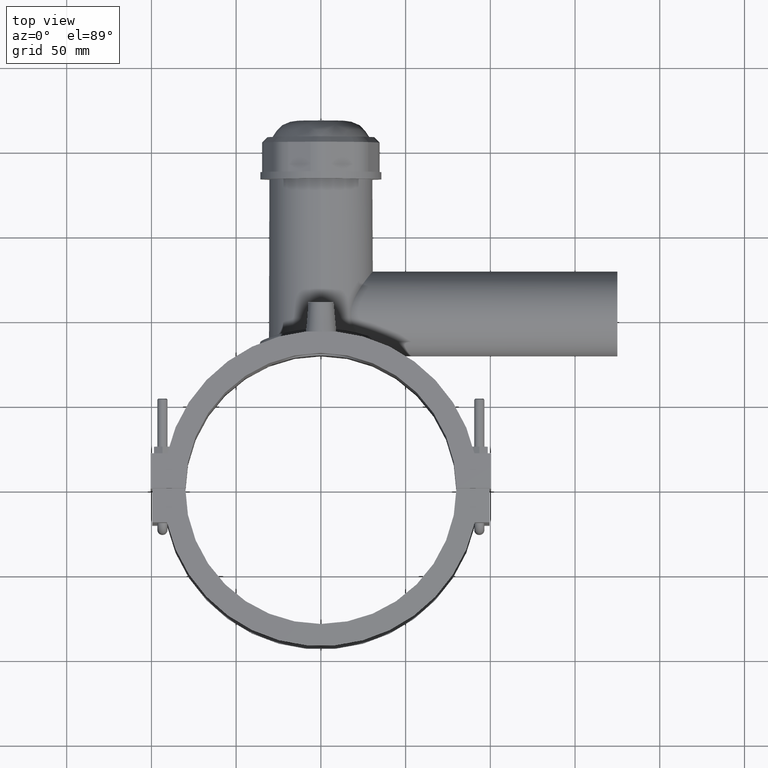
[diagram: clean part render]
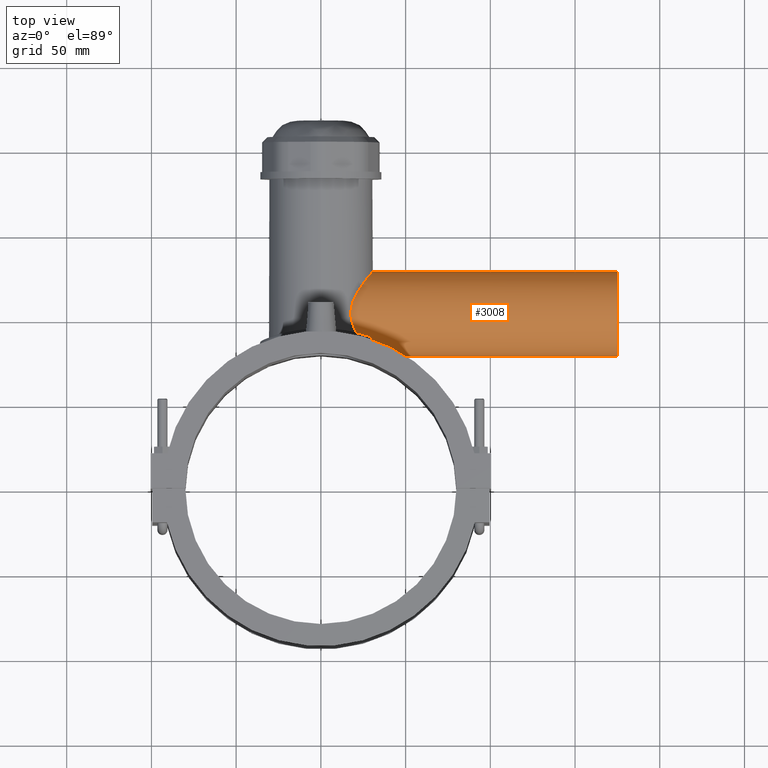
[diagram: same view with one face highlighted and labeled with its STEP entity id]
A machine part, top view. The second image highlights one B-rep face of the part: STEP entity #3008.
In plain terms, the highlighted cylindrical surface (bore or boss wall) has radius 25 mm, axis along (1, 0, 0).
Its self-contained STEP definition (entity closure, byte-faithful):
#710=CIRCLE('',#3194,25.0000000000001);
#815=FACE_BOUND('',#1051,.T.);
#866=FACE_OUTER_BOUND('',#1050,.T.);
#1050=EDGE_LOOP('',(#2068));
#1051=EDGE_LOOP('',(#2069,#2070,#2071,#2072,#2073,#2074,#2075,#2076));
#1278=B_SPLINE_CURVE_WITH_KNOTS('',3,(#4453,#4454,#4455,#4456),
 .UNSPECIFIED.,.F.,.F.,(4,4),(1.96961849916364,2.60579241524687),
 .UNSPECIFIED.);
#1279=B_SPLINE_CURVE_WITH_KNOTS('',3,(#4458,#4459,#4460,#4461,#4462,#4463,
#4464,#4465),.UNSPECIFIED.,.F.,.F.,(4,2,2,4),(-0.369474162838264,-0.220000092691223,
-0.0735199127834791,0.),.UNSPECIFIED.);
#1280=B_SPLINE_CURVE_WITH_KNOTS('',3,(#4467,#4468,#4469,#4470,#4471,#4472),
 .UNSPECIFIED.,.F.,.F.,(4,2,4),(13.650044194566,13.7841195731783,14.119760212921),
 .UNSPECIFIED.);
#1281=B_SPLINE_CURVE_WITH_KNOTS('',3,(#4474,#4475,#4476,#4477,#4478,#4479,
#4480,#4481,#4482,#4483,#4484,#4485,#4486,#4487,#4488,#4489,#4490,#4491,
#4492,#4493,#4494,#4495,#4496,#4497,#4498,#4499),.UNSPECIFIED.,.F.,.F.,
(4,2,2,2,2,2,2,2,2,2,2,2,4),(2.44276884685746,2.76300415168043,3.22350484362717,
3.68400553557391,4.2419359676397,4.5209011836726,4.79986639970549,5.07883161573839,
5.35779683177129,5.91572726383708,6.37622795578382,6.83672864773056,7.15696395255353),
 .UNSPECIFIED.);
#1282=B_SPLINE_CURVE_WITH_KNOTS('',3,(#4501,#4502,#4503,#4504,#4505,#4506),
 .UNSPECIFIED.,.F.,.F.,(4,2,4),(9.53341195761478,9.86905259781485,10.0031279764272),
 .UNSPECIFIED.);
#1283=B_SPLINE_CURVE_WITH_KNOTS('',3,(#4508,#4509,#4510,#4511,#4512,#4513,
#4514,#4515),.UNSPECIFIED.,.F.,.F.,(4,2,2,4),(-0.33638573430797,-0.246973932043497,
-0.1519409621163,0.),.UNSPECIFIED.);
#1284=B_SPLINE_CURVE_WITH_KNOTS('',3,(#4517,#4518,#4519,#4520),
 .UNSPECIFIED.,.F.,.F.,(4,4),(1.31064725821939,1.94682117432548),
 .UNSPECIFIED.);
#1285=B_SPLINE_CURVE_WITH_KNOTS('',3,(#4521,#4522,#4523,#4524,#4525,#4526,
#4527,#4528,#4529,#4530,#4531,#4532,#4533,#4534,#4535,#4536,#4537,#4538,
#4539,#4540,#4541,#4542,#4543,#4544,#4545,#4546,#4547,#4548,#4549,#4550,
#4551,#4552,#4553,#4554,#4555,#4556,#4557,#4558,#4559,#4560,#4561,#4562,
#4563,#4564,#4565,#4566,#4567),.UNSPECIFIED.,.F.,.F.,(4,2,2,2,2,2,2,2,2,
2,2,2,2,2,2,2,2,2,2,3,2,2,4),(-9.352334075759,-9.14983183191696,-8.63333325207762,
-8.11683467223829,-7.60033609239895,-7.08383751255962,-6.56733893272028,
-6.05084035288094,-5.55273459869049,-5.05462884450004,-4.55652309030959,
-4.05841733611914,-3.56031158192869,-3.06220582773825,-2.5641000735478,
-2.06599431935735,-1.54949573951801,-1.03299715967867,-0.516498579839336,
0.,0.516498579839337,1.03299715967867,1.23549940352071),.UNSPECIFIED.);
#1334=VERTEX_POINT('',#4449);
#1335=VERTEX_POINT('',#4451);
#1336=VERTEX_POINT('',#4452);
#1337=VERTEX_POINT('',#4457);
#1338=VERTEX_POINT('',#4466);
#1339=VERTEX_POINT('',#4473);
#1340=VERTEX_POINT('',#4500);
#1341=VERTEX_POINT('',#4507);
#1342=VERTEX_POINT('',#4516);
#1628=EDGE_CURVE('',#1334,#1334,#710,.T.);
#1629=EDGE_CURVE('',#1335,#1336,#1278,.T.);
#1630=EDGE_CURVE('',#1337,#1335,#1279,.T.);
#1631=EDGE_CURVE('',#1338,#1337,#1280,.T.);
#1632=EDGE_CURVE('',#1339,#1338,#1281,.T.);
#1633=EDGE_CURVE('',#1340,#1339,#1282,.T.);
#1634=EDGE_CURVE('',#1341,#1340,#1283,.T.);
#1635=EDGE_CURVE('',#1342,#1341,#1284,.T.);
#1636=EDGE_CURVE('',#1336,#1342,#1285,.T.);
#2068=ORIENTED_EDGE('',*,*,#1628,.F.);
#2069=ORIENTED_EDGE('',*,*,#1629,.F.);
#2070=ORIENTED_EDGE('',*,*,#1630,.F.);
#2071=ORIENTED_EDGE('',*,*,#1631,.F.);
#2072=ORIENTED_EDGE('',*,*,#1632,.F.);
#2073=ORIENTED_EDGE('',*,*,#1633,.F.);
#2074=ORIENTED_EDGE('',*,*,#1634,.F.);
#2075=ORIENTED_EDGE('',*,*,#1635,.F.);
#2076=ORIENTED_EDGE('',*,*,#1636,.F.);
#2960=CYLINDRICAL_SURFACE('',#3193,25.);
#3008=ADVANCED_FACE('',(#866,#815),#2960,.T.);
#3193=AXIS2_PLACEMENT_3D('',#4448,#3479,#3480);
#3194=AXIS2_PLACEMENT_3D('',#4450,#3481,#3482);
#3479=DIRECTION('center_axis',(1.,0.,0.));
#3480=DIRECTION('ref_axis',(0.,1.,0.));
#3481=DIRECTION('center_axis',(1.,0.,0.));
#3482=DIRECTION('ref_axis',(0.,0.,-1.));
#4448=CARTESIAN_POINT('Origin',(87.5,104.,0.));
#4449=CARTESIAN_POINT('',(175.,129.,0.));
#4450=CARTESIAN_POINT('Origin',(175.,104.,0.));
#4451=CARTESIAN_POINT('',(27.5517926027614,90.7581502035681,21.2050327509348));
#4452=CARTESIAN_POINT('',(21.0745909503137,92.4770496951112,22.1860680670375));
#4453=CARTESIAN_POINT('Ctrl Pts',(27.5517926027655,90.7581502035723,21.2050327509497));
#4454=CARTESIAN_POINT('Ctrl Pts',(25.4304632085996,91.4021301368248,21.6071771686545));
#4455=CARTESIAN_POINT('Ctrl Pts',(23.2607782152776,91.9788395714178,21.9273088095801));
#4456=CARTESIAN_POINT('Ctrl Pts',(21.0745909502518,92.4770496949355,22.1860680668526));
#4457=CARTESIAN_POINT('',(30.0810598183456,88.7071860079646,19.7770028114746));
#4458=CARTESIAN_POINT('Ctrl Pts',(30.0810598183482,88.707186007963,19.7770028114717));
#4459=CARTESIAN_POINT('Ctrl Pts',(29.911969899435,89.0397869255021,20.0341906176319));
#4460=CARTESIAN_POINT('Ctrl Pts',(29.6589860963479,89.3781392185703,20.2817008823099));
#4461=CARTESIAN_POINT('Ctrl Pts',(29.0157069767968,89.9989550151241,20.7149980597656));
#4462=CARTESIAN_POINT('Ctrl Pts',(28.6352174737259,90.2752877551702,20.897282330716));
#4463=CARTESIAN_POINT('Ctrl Pts',(28.006187405351,90.5953074195802,21.1028522556887));
#4464=CARTESIAN_POINT('Ctrl Pts',(27.7825262772788,90.6881055152177,21.1612921327143));
#4465=CARTESIAN_POINT('Ctrl Pts',(27.5517926027385,90.7581502035806,21.2050327509548));
#4466=CARTESIAN_POINT('',(31.8579105151215,85.4547455541993,16.7652479131326));
#4467=CARTESIAN_POINT('Ctrl Pts',(31.857910515713,85.4547455550706,16.7652479126563));
#4468=CARTESIAN_POINT('Ctrl Pts',(31.6923540434658,85.7391462514217,17.0798441122249));
#4469=CARTESIAN_POINT('Ctrl Pts',(31.5262787897922,86.0287716315145,17.384110690842));
#4470=CARTESIAN_POINT('Ctrl Pts',(30.9465573946602,87.0572176471171,18.4125567064445));
#4471=CARTESIAN_POINT('Ctrl Pts',(30.5144333589119,87.8547375701427,19.1178364291004));
#4472=CARTESIAN_POINT('Ctrl Pts',(30.0810598183468,88.7071860079658,19.7770028114738));
#4473=CARTESIAN_POINT('',(31.8579105151215,85.4547455541993,-16.7652479131326));
#4474=CARTESIAN_POINT('Ctrl Pts',(31.8579105142141,85.4547455538212,-16.7652479112743));
#4475=CARTESIAN_POINT('Ctrl Pts',(32.8103590370452,85.0996684938745,-16.3724714692221));
#4476=CARTESIAN_POINT('Ctrl Pts',(33.7365040446372,84.7362075096696,-15.9454869672825));
#4477=CARTESIAN_POINT('Ctrl Pts',(35.9191824145838,83.8402588717915,-14.8092294921097));
#4478=CARTESIAN_POINT('Ctrl Pts',(37.142390332437,83.3035002747423,-14.0591252602343));
#4479=CARTESIAN_POINT('Ctrl Pts',(39.4315254331058,82.2446662035716,-12.3575707982635));
#4480=CARTESIAN_POINT('Ctrl Pts',(40.4980882984682,81.7222079846302,-11.4072141935437));
#4481=CARTESIAN_POINT('Ctrl Pts',(42.6327772851359,80.6325633000476,-9.0030004860943));
#4482=CARTESIAN_POINT('Ctrl Pts',(43.7146809936617,80.0448294022266,-7.38268774416654));
#4483=CARTESIAN_POINT('Ctrl Pts',(44.8167366152111,79.4296988894949,-4.70520297810231));
#4484=CARTESIAN_POINT('Ctrl Pts',(45.1007811557656,79.2679403470936,-3.77194537047574));
#4485=CARTESIAN_POINT('Ctrl Pts',(45.4764408042642,79.0530211899167,-1.88430227198074));
#4486=CARTESIAN_POINT('Ctrl Pts',(45.5679712078561,79.,-0.929884053442989));
#4487=CARTESIAN_POINT('Ctrl Pts',(45.5679712078561,79.,0.92988405344299));
#4488=CARTESIAN_POINT('Ctrl Pts',(45.4764408042642,79.0530211899167,1.88430227198074));
#4489=CARTESIAN_POINT('Ctrl Pts',(45.1007811557656,79.2679403470936,3.77194537047575));
#4490=CARTESIAN_POINT('Ctrl Pts',(44.8167366152111,79.4296988894949,4.70520297810232));
#4491=CARTESIAN_POINT('Ctrl Pts',(43.7146809936617,80.0448294022266,7.38268774416655));
#4492=CARTESIAN_POINT('Ctrl Pts',(42.6327772851359,80.6325633000476,9.00300048609431));
#4493=CARTESIAN_POINT('Ctrl Pts',(40.4980882984682,81.7222079846302,11.4072141935437));
#4494=CARTESIAN_POINT('Ctrl Pts',(39.4315254331058,82.2446662035716,12.3575707982635));
#4495=CARTESIAN_POINT('Ctrl Pts',(37.142390332437,83.3035002747423,14.0591252602343));
#4496=CARTESIAN_POINT('Ctrl Pts',(35.9191824145838,83.8402588717915,14.8092294921097));
#4497=CARTESIAN_POINT('Ctrl Pts',(33.7365040446372,84.7362075096696,15.9454869672825));
#4498=CARTESIAN_POINT('Ctrl Pts',(32.8103590370452,85.0996684938745,16.3724714692221));
#4499=CARTESIAN_POINT('Ctrl Pts',(31.8579105142141,85.4547455538212,16.7652479112743));
#4500=CARTESIAN_POINT('',(30.081059815101,88.7071860099754,-19.7770028151086));
#4501=CARTESIAN_POINT('Ctrl Pts',(30.0810598165748,88.7071860114512,-19.777002814169));
#4502=CARTESIAN_POINT('Ctrl Pts',(30.5144333577333,87.854737572317,-19.1178364310218));
#4503=CARTESIAN_POINT('Ctrl Pts',(30.9465573940956,87.0572176481187,-18.4125567074461));
#4504=CARTESIAN_POINT('Ctrl Pts',(31.5262787897922,86.0287716315145,-17.384110690842));
#4505=CARTESIAN_POINT('Ctrl Pts',(31.6923540434658,85.7391462514217,-17.0798441122249));
#4506=CARTESIAN_POINT('Ctrl Pts',(31.857910515713,85.4547455550706,-16.7652479126563));
#4507=CARTESIAN_POINT('',(27.5517926029555,90.7581502034627,-21.2050327507656));
#4508=CARTESIAN_POINT('Ctrl Pts',(27.5517926027385,90.7581502035806,-21.2050327509548));
#4509=CARTESIAN_POINT('Ctrl Pts',(27.8606044757056,90.6644030232098,-21.1464907012496));
#4510=CARTESIAN_POINT('Ctrl Pts',(28.1573468079745,90.5298666199096,-21.0615880469958));
#4511=CARTESIAN_POINT('Ctrl Pts',(28.7172776334725,90.2063833238093,-20.8512747909855));
#4512=CARTESIAN_POINT('Ctrl Pts',(28.9840828186242,90.0106430032606,-20.7211251849502));
#4513=CARTESIAN_POINT('Ctrl Pts',(29.5990557174509,89.4564787672127,-20.3385744605764));
#4514=CARTESIAN_POINT('Ctrl Pts',(29.8920810355818,89.078908443857,-20.064441819444));
#4515=CARTESIAN_POINT('Ctrl Pts',(30.0810598183482,88.707186007963,-19.7770028114717));
#4516=CARTESIAN_POINT('',(21.0745909503137,92.4770496951112,-22.1860680670375));
#4517=CARTESIAN_POINT('Ctrl Pts',(21.0745909502518,92.4770496949355,-22.1860680668526));
#4518=CARTESIAN_POINT('Ctrl Pts',(23.2607775049127,91.9788397333028,-21.9273088936596));
#4519=CARTESIAN_POINT('Ctrl Pts',(25.4304621297586,91.4021304643384,-21.607177373179));
#4520=CARTESIAN_POINT('Ctrl Pts',(27.5517926029943,90.7581502035029,-21.2050327509063));
#4521=CARTESIAN_POINT('Ctrl Pts',(21.0745909503549,92.4770496952916,22.1860680670375));
#4522=CARTESIAN_POINT('Ctrl Pts',(20.7658854939631,93.0416482612457,22.4793080047291));
#4523=CARTESIAN_POINT('Ctrl Pts',(20.4656664791027,93.6197414200075,22.7521765914243));
#4524=CARTESIAN_POINT('Ctrl Pts',(19.4491465104591,95.7149835615786,23.6439053932152));
#4525=CARTESIAN_POINT('Ctrl Pts',(18.8087110875496,97.2996753863047,24.1435666321451));
#4526=CARTESIAN_POINT('Ctrl Pts',(17.9043339506845,100.580656833605,24.8216488174023));
#4527=CARTESIAN_POINT('Ctrl Pts',(17.6453960000902,102.278338067202,25.));
#4528=CARTESIAN_POINT('Ctrl Pts',(17.6453960000902,105.721661932798,25.));
#4529=CARTESIAN_POINT('Ctrl Pts',(17.9043339506845,107.419343166395,24.8216488174023));
#4530=CARTESIAN_POINT('Ctrl Pts',(18.8087110875496,110.700324613695,24.1435666321451));
#4531=CARTESIAN_POINT('Ctrl Pts',(19.4491465104591,112.285016438421,23.6439053932152));
#4532=CARTESIAN_POINT('Ctrl Pts',(20.9095930159152,115.295276106832,22.3627478630509));
#4533=CARTESIAN_POINT('Ctrl Pts',(21.7290170781198,116.722518877908,21.5800214015293));
#4534=CARTESIAN_POINT('Ctrl Pts',(23.3776041358606,119.36960239019,19.7821923044427));
#4535=CARTESIAN_POINT('Ctrl Pts',(24.2066765989964,120.588993835109,18.766345224218));
#4536=CARTESIAN_POINT('Ctrl Pts',(25.7202641563971,122.727576826744,16.6277622325837));
#4537=CARTESIAN_POINT('Ctrl Pts',(26.4655478378992,123.733461294011,15.4320705950653));
#4538=CARTESIAN_POINT('Ctrl Pts',(27.8379513570982,125.539169162758,12.7915006739807));
#4539=CARTESIAN_POINT('Ctrl Pts',(28.4645948092368,126.339013666623,11.3463892520938));
#4540=CARTESIAN_POINT('Ctrl Pts',(29.5017254590385,127.64635667487,8.28383526409027));
#4541=CARTESIAN_POINT('Ctrl Pts',(29.9129488161225,128.154992300218,6.66278751453463));
#4542=CARTESIAN_POINT('Ctrl Pts',(30.4622285480436,128.831965573838,3.35110075354027));
#4543=CARTESIAN_POINT('Ctrl Pts',(30.6,129.,1.66035251396817));
#4544=CARTESIAN_POINT('Ctrl Pts',(30.6,129.,-1.66035251396816));
#4545=CARTESIAN_POINT('Ctrl Pts',(30.4622285480435,128.831965573838,-3.35110075354025));
#4546=CARTESIAN_POINT('Ctrl Pts',(29.9129488161225,128.154992300218,-6.66278751453461));
#4547=CARTESIAN_POINT('Ctrl Pts',(29.5017254590385,127.64635667487,-8.28383526409025));
#4548=CARTESIAN_POINT('Ctrl Pts',(28.4645948092368,126.339013666623,-11.3463892520937));
#4549=CARTESIAN_POINT('Ctrl Pts',(27.8379513570982,125.539169162758,-12.7915006739807));
#4550=CARTESIAN_POINT('Ctrl Pts',(26.4655478378992,123.733461294012,-15.4320705950653));
#4551=CARTESIAN_POINT('Ctrl Pts',(25.7202641563971,122.727576826744,-16.6277622325837));
#4552=CARTESIAN_POINT('Ctrl Pts',(24.2066765989964,120.588993835109,-18.766345224218));
#4553=CARTESIAN_POINT('Ctrl Pts',(23.3776041358606,119.36960239019,-19.7821923044427));
#4554=CARTESIAN_POINT('Ctrl Pts',(21.7290170781198,116.722518877908,-21.5800214015293));
#4555=CARTESIAN_POINT('Ctrl Pts',(20.9095930159152,115.295276106832,-22.3627478630509));
#4556=CARTESIAN_POINT('Ctrl Pts',(19.4491465104591,112.285016438421,-23.6439053932152));
#4557=CARTESIAN_POINT('Ctrl Pts',(18.8087110875496,110.700324613695,-24.1435666321451));
#4558=CARTESIAN_POINT('Ctrl Pts',(17.9043339506845,107.419343166395,-24.8216488174023));
#4559=CARTESIAN_POINT('Ctrl Pts',(17.6453960000902,105.721661932798,-25.));
#4560=CARTESIAN_POINT('Ctrl Pts',(17.6453960000902,104.,-25.));
#4561=CARTESIAN_POINT('Ctrl Pts',(17.6453960000902,102.278338067202,-25.));
#4562=CARTESIAN_POINT('Ctrl Pts',(17.9043339506845,100.580656833605,-24.8216488174023));
#4563=CARTESIAN_POINT('Ctrl Pts',(18.8087110875496,97.2996753863047,-24.1435666321451));
#4564=CARTESIAN_POINT('Ctrl Pts',(19.4491465104591,95.7149835615786,-23.6439053932152));
#4565=CARTESIAN_POINT('Ctrl Pts',(20.4656664791027,93.6197414200075,-22.7521765914243));
#4566=CARTESIAN_POINT('Ctrl Pts',(20.7658854939631,93.0416482612457,-22.4793080047291));
#4567=CARTESIAN_POINT('Ctrl Pts',(21.0745909503549,92.4770496952916,-22.1860680670375));